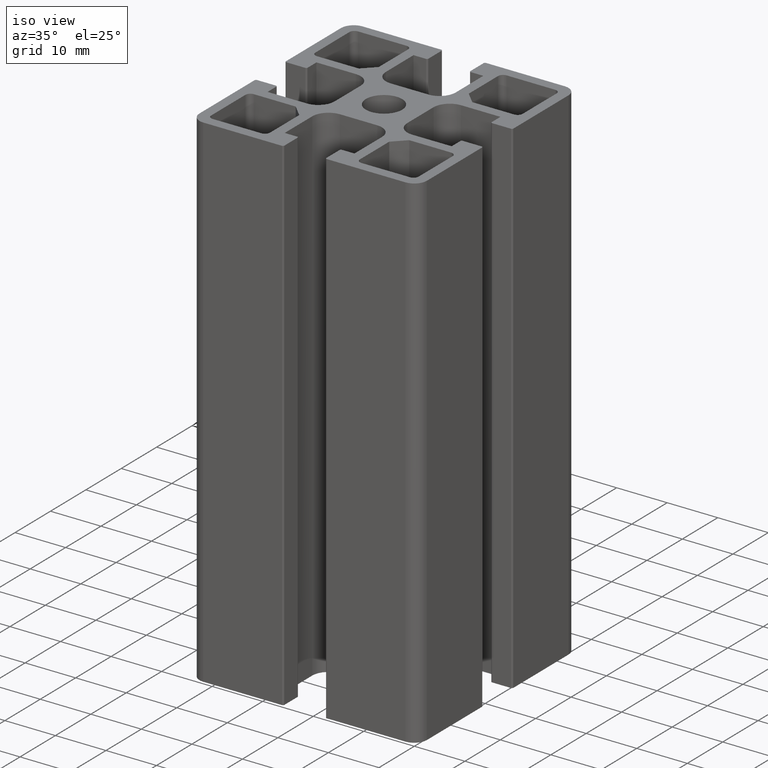
[diagram: clean part render]
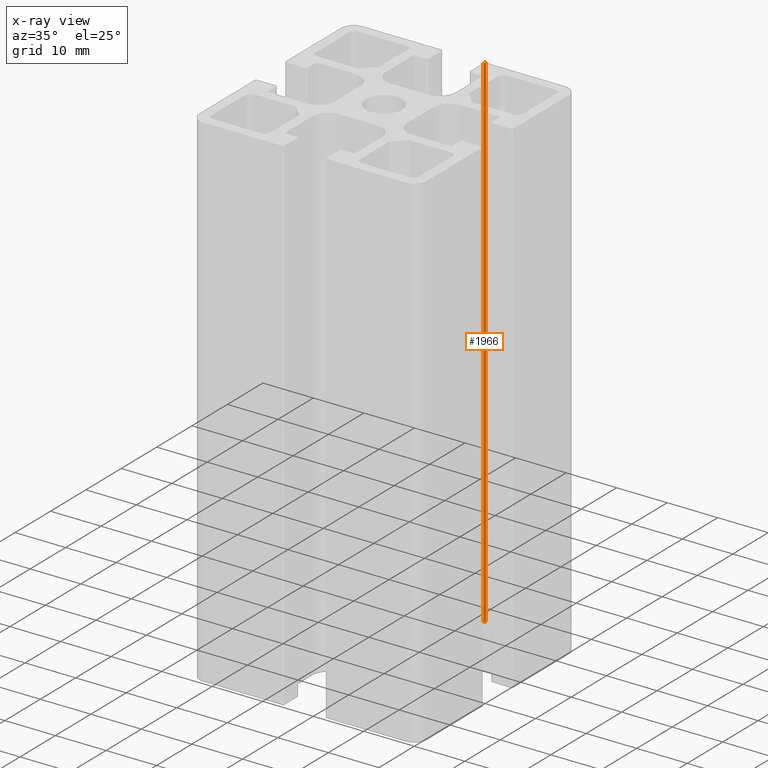
[diagram: x-ray — body ghosted, one internal face saturated and labeled with its STEP entity id]
A machine part, iso view, then the same camera in x-ray: the body is ghosted and one INTERNAL B-rep face — a face not visible from any outside direction — is saturated and labeled: STEP entity #1966.
In plain terms, the highlighted cylindrical surface (edge-blend (fillet) strip) has radius 0.3 mm, axis along (0, 0, 1).
Its self-contained STEP definition (entity closure, byte-faithful):
#88=CIRCLE('',#2130,0.300000000000001);
#89=CIRCLE('',#2131,0.300000000000001);
#139=CYLINDRICAL_SURFACE('',#2129,0.300000000000001);
#219=FACE_OUTER_BOUND('',#319,.T.);
#319=EDGE_LOOP('',(#1536,#1537,#1538,#1539));
#509=LINE('',#3187,#717);
#510=LINE('',#3190,#718);
#717=VECTOR('',#2599,100.);
#718=VECTOR('',#2602,100.);
#922=VERTEX_POINT('',#3183);
#923=VERTEX_POINT('',#3184);
#924=VERTEX_POINT('',#3186);
#925=VERTEX_POINT('',#3188);
#1181=EDGE_CURVE('',#922,#923,#88,.T.);
#1182=EDGE_CURVE('',#922,#924,#509,.T.);
#1183=EDGE_CURVE('',#925,#924,#89,.T.);
#1184=EDGE_CURVE('',#925,#923,#510,.T.);
#1536=ORIENTED_EDGE('',*,*,#1181,.F.);
#1537=ORIENTED_EDGE('',*,*,#1182,.T.);
#1538=ORIENTED_EDGE('',*,*,#1183,.F.);
#1539=ORIENTED_EDGE('',*,*,#1184,.T.);
#1966=ADVANCED_FACE('',(#219),#139,.T.);
#2129=AXIS2_PLACEMENT_3D('',#3182,#2595,#2596);
#2130=AXIS2_PLACEMENT_3D('',#3185,#2597,#2598);
#2131=AXIS2_PLACEMENT_3D('',#3189,#2600,#2601);
#2595=DIRECTION('center_axis',(0.,0.,1.));
#2596=DIRECTION('ref_axis',(0.,-1.,0.));
#2597=DIRECTION('center_axis',(0.,0.,1.));
#2598=DIRECTION('ref_axis',(0.,-1.,0.));
#2599=DIRECTION('',(0.,0.,-1.));
#2600=DIRECTION('center_axis',(0.,0.,-1.));
#2601=DIRECTION('ref_axis',(0.,-1.,0.));
#2602=DIRECTION('',(0.,0.,1.));
#3182=CARTESIAN_POINT('Origin',(4.45,22.2,0.));
#3183=CARTESIAN_POINT('',(4.45,22.5,100.));
#3184=CARTESIAN_POINT('',(4.15,22.2,100.));
#3185=CARTESIAN_POINT('Origin',(4.45,22.2,100.));
#3186=CARTESIAN_POINT('',(4.45,22.5,0.));
#3187=CARTESIAN_POINT('',(4.45,22.5,0.));
#3188=CARTESIAN_POINT('',(4.15,22.2,0.));
#3189=CARTESIAN_POINT('Origin',(4.45,22.2,0.));
#3190=CARTESIAN_POINT('',(4.15,22.2,0.));